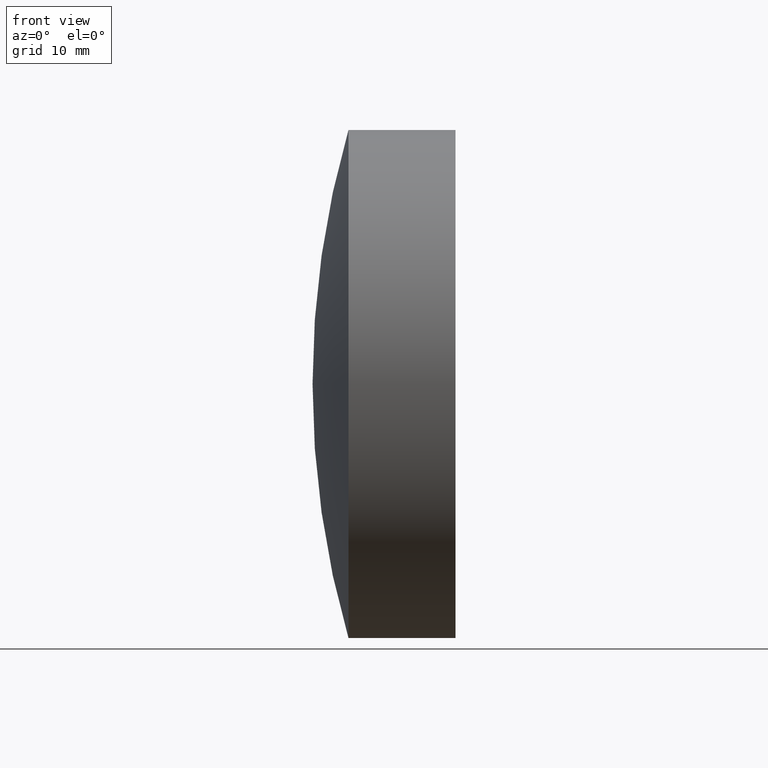
[diagram: clean part render]
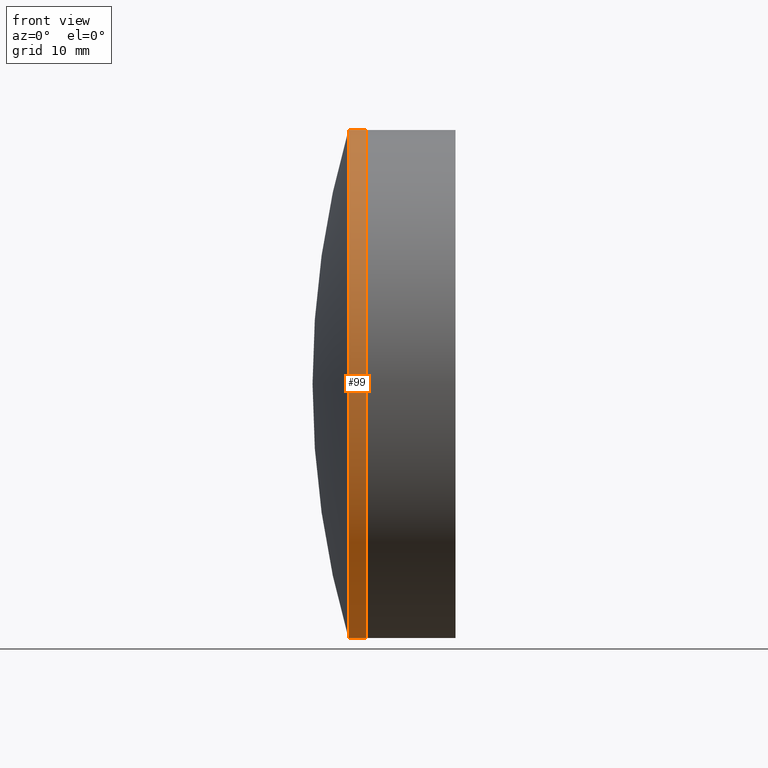
[diagram: same view with one face highlighted and labeled with its STEP entity id]
A machine part, front view. The second image highlights one B-rep face of the part: STEP entity #99.
In plain terms, the highlighted cylindrical surface (partial cylindrical patch) has radius 25.4 mm, axis along (-1, -0, -0).
Its self-contained STEP definition (entity closure, byte-faithful):
#9 = CARTESIAN_POINT ( 'NONE',  ( 183.8303689728458900, 0.0000000000000000000, 25.40000000000002700 ) ) ;
#10 = DIRECTION ( 'NONE',  ( -1.000000000000000000, -0.0000000000000000000, -0.0000000000000000000 ) ) ;
#12 = AXIS2_PLACEMENT_3D ( 'NONE', #122, #10, #36 ) ;
#14 = ORIENTED_EDGE ( 'NONE', *, *, #272, .T. ) ;
#17 = ORIENTED_EDGE ( 'NONE', *, *, #81, .T. ) ;
#22 = CIRCLE ( 'NONE', #190, 25.40000000000002700 ) ;
#35 = CARTESIAN_POINT ( 'NONE',  ( 183.8303689728458900, 3.110602869834280400E-015, -25.40000000000002700 ) ) ;
#36 = DIRECTION ( 'NONE',  ( 0.0000000000000000000, 0.0000000000000000000, 1.000000000000000000 ) ) ;
#48 = LINE ( 'NONE', #203, #58 ) ;
#53 = DIRECTION ( 'NONE',  ( -1.000000000000000000, -0.0000000000000000000, -0.0000000000000000000 ) ) ;
#54 = VECTOR ( 'NONE', #92, 1000.000000000000000 ) ;
#55 = EDGE_CURVE ( 'NONE', #286, #249, #22, .T. ) ;
#58 = VECTOR ( 'NONE', #146, 1000.000000000000000 ) ;
#67 = DIRECTION ( 'NONE',  ( 0.0000000000000000000, 0.0000000000000000000, 1.000000000000000000 ) ) ;
#81 = EDGE_CURVE ( 'NONE', #130, #249, #132, .T. ) ;
#92 = DIRECTION ( 'NONE',  ( -1.000000000000000000, -0.0000000000000000000, -0.0000000000000000000 ) ) ;
#96 = CARTESIAN_POINT ( 'NONE',  ( 182.0449861135718700, 0.0000000000000000000, 0.0000000000000000000 ) ) ;
#99 = ADVANCED_FACE ( 'NONE', ( #334 ), #124, .T. ) ;
#118 = VERTEX_POINT ( 'NONE', #35 ) ;
#122 = CARTESIAN_POINT ( 'NONE',  ( -0.8160621761658039000, 0.0000000000000000000, 0.0000000000000000000 ) ) ;
#124 = CYLINDRICAL_SURFACE ( 'NONE', #12, 25.40000000000002700 ) ;
#125 = EDGE_LOOP ( 'NONE', ( #209, #14, #17, #191 ) ) ;
#130 = VERTEX_POINT ( 'NONE', #9 ) ;
#132 = LINE ( 'NONE', #287, #54 ) ;
#142 = CARTESIAN_POINT ( 'NONE',  ( 182.0449861135718400, 0.0000000000000000000, -25.39999999999998100 ) ) ;
#146 = DIRECTION ( 'NONE',  ( -1.000000000000000000, -0.0000000000000000000, -0.0000000000000000000 ) ) ;
#190 = AXIS2_PLACEMENT_3D ( 'NONE', #96, #265, #67 ) ;
#191 = ORIENTED_EDGE ( 'NONE', *, *, #55, .F. ) ;
#203 = CARTESIAN_POINT ( 'NONE',  ( -0.8160621761658039000, 3.110602869834280400E-015, -25.40000000000002700 ) ) ;
#209 = ORIENTED_EDGE ( 'NONE', *, *, #220, .F. ) ;
#220 = EDGE_CURVE ( 'NONE', #118, #286, #48, .T. ) ;
#227 = DIRECTION ( 'NONE',  ( 0.0000000000000000000, 0.0000000000000000000, 1.000000000000000000 ) ) ;
#249 = VERTEX_POINT ( 'NONE', #303 ) ;
#255 = CARTESIAN_POINT ( 'NONE',  ( 183.8303689728458900, 0.0000000000000000000, 0.0000000000000000000 ) ) ;
#265 = DIRECTION ( 'NONE',  ( -1.000000000000000000, -0.0000000000000000000, -0.0000000000000000000 ) ) ;
#272 = EDGE_CURVE ( 'NONE', #118, #130, #291, .T. ) ;
#276 = AXIS2_PLACEMENT_3D ( 'NONE', #255, #53, #227 ) ;
#286 = VERTEX_POINT ( 'NONE', #142 ) ;
#287 = CARTESIAN_POINT ( 'NONE',  ( -0.8160621761658039000, 0.0000000000000000000, 25.40000000000002700 ) ) ;
#291 = CIRCLE ( 'NONE', #276, 25.40000000000002700 ) ;
#303 = CARTESIAN_POINT ( 'NONE',  ( 182.0449861135718400, -3.110602869834274900E-015, 25.40000000000000900 ) ) ;
#334 = FACE_OUTER_BOUND ( 'NONE', #125, .T. ) ;